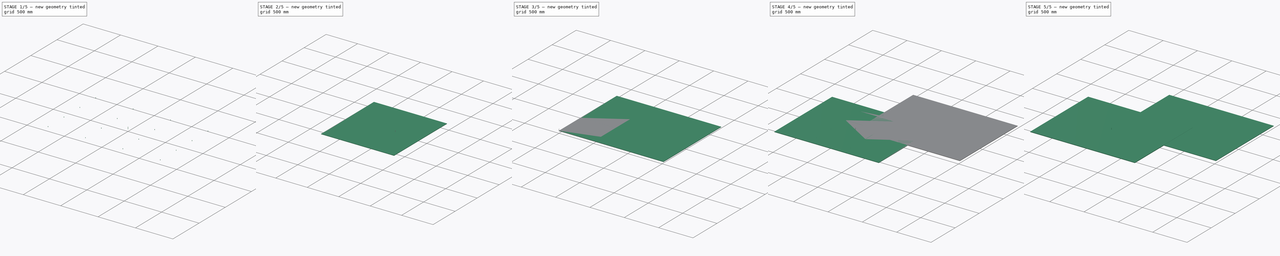
[diagram: build sequence overview — one tinted view per stage of 5, left to right]
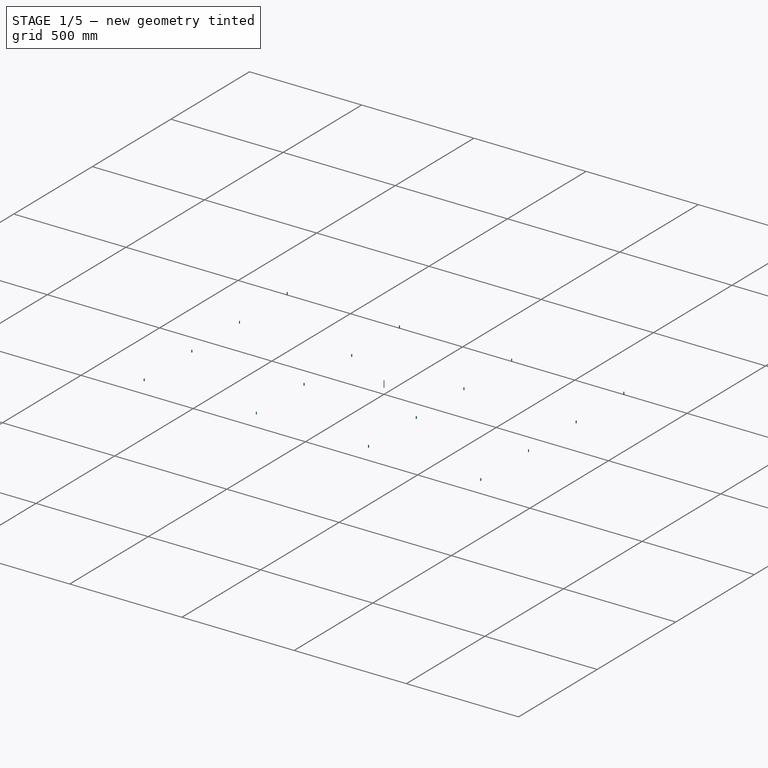
[diagram: stage 1 of 5 — iso view after this stage's code; geometry added in this stage tinted green]
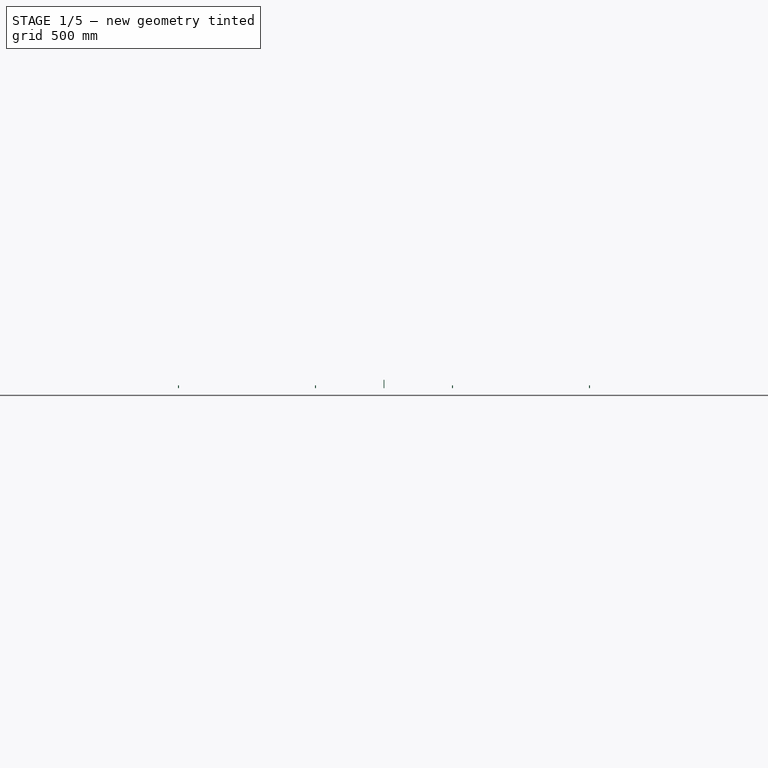
[diagram: stage 1 of 5 — front view after this stage's code; geometry added in this stage tinted green]
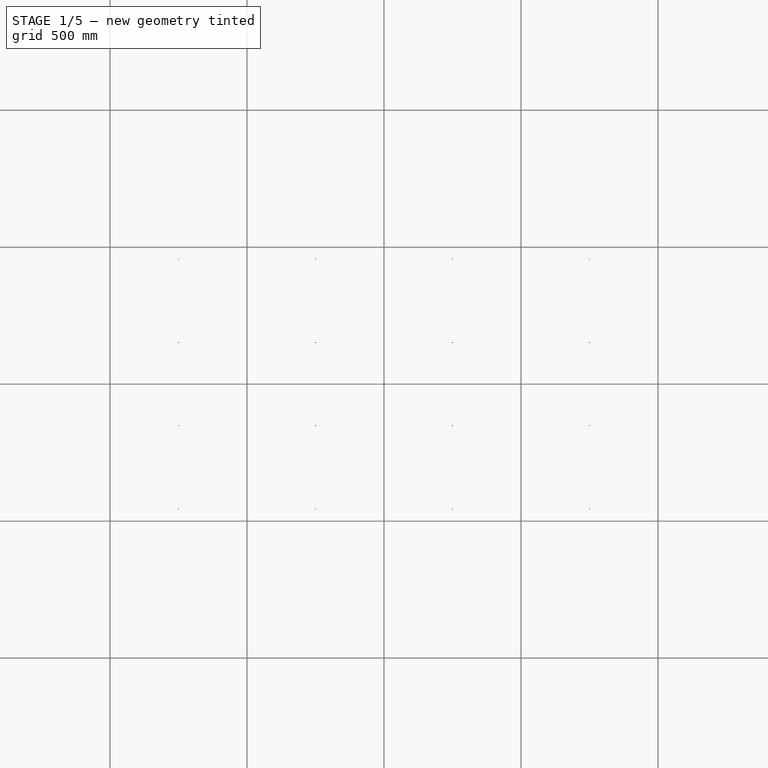
[diagram: stage 1 of 5 — top view after this stage's code; geometry added in this stage tinted green]
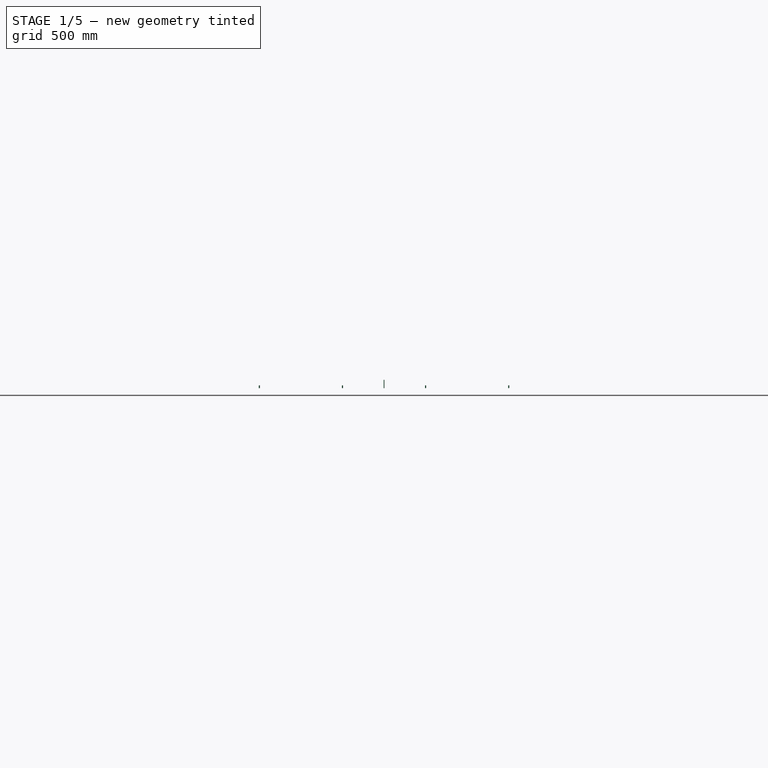
[diagram: stage 1 of 5 — right view after this stage's code; geometry added in this stage tinted green]
FCSTD DOCUMENT  (FreeCAD 0.22R36135 (Git))
Label: stillage_plywood
License: All rights reserved
LicenseURL: http://en.wikipedia.org/wiki/All_rights_reserved
objects: Part::FeaturePython×11, Path::FeaturePython×8, App::DocumentObjectGroup×6, Sketcher::SketchObject×3, PartDesign::Body×3, PartDesign::SubShapeBinder×2, PartDesign::Pad×2, Part::Compound×2, PartDesign::Boolean×2, App::FeaturePython×2, Part::Cylinder×1
note: 31 computed .brp shape members not serialized (recipe doc carries the construction recipe); baked Part::Feature solids carry a one-line shape summary decoded from their .brp

FEATURE [Part::Cylinder] Cylinder
  Angle = 360
  AttacherType = Attacher::AttachEngine3D
  FirstAngle = 0
  Height = 10
  Radius = 2
  SecondAngle = 0
FEATURE [Part::FeaturePython] LinearArray  # WARN: FeaturePython — macro-defined, semantics opaque (R4)
  Alignment = 0
  CellStart = A1
  Count = 4
  Dir = (1,0,0)
  DirIsDriven = true
  DistributionLaw = 0
  DrivenProperty = 1
  EndInclusive = true
  ExposePlacement = false
  GeneratorMode = 0
  MarkerShape = 1
  MarkerSize = 0
  NumElements = 4
  OrientMode = 1
  Point = (0,0,0)
  PointIsDriven = true
  Reverse = false
  SpanEnd = 1500
  SpanStart = 0
  Step = 500
  Type = lattice2LinearArray.LinearArray
  VSGVersion = 1
  Values = 0.0 | 500.0 | 1000.0 | 1500.0
  ValuesSource = 2
  isLattice = 1
FEATURE [Part::FeaturePython] LinearArray001  # WARN: FeaturePython — macro-defined, semantics opaque (R4)
  Alignment = 0
  CellStart = A1
  Count = 4
  Dir = (0,1,0)
  DirIsDriven = true
  DistributionLaw = 0
  DrivenProperty = 1
  EndInclusive = true
  ExposePlacement = false
  GeneratorMode = 0
  MarkerShape = 1
  MarkerSize = 0
  NumElements = 4
  OrientMode = 0
  Point = (0,0,0)
  PointIsDriven = true
  Reverse = false
  SpanEnd = 910
  SpanStart = 0
  Step = 303.333
  Type = lattice2LinearArray.LinearArray
  VSGVersion = 1
  Values = 0.0 | 303.3333333333333 | 606.6666666666666 | 910.0
  ValuesSource = 2
  isLattice = 1
FEATURE [Part::FeaturePython] Populate  label="Populate LinearArray001 with LinearArray"  # WARN: FeaturePython — macro-defined, semantics opaque (R4)
  Copying = 0
  ExposePlacement = false
  MarkerShape = 1
  MarkerSize = 0
  NumElements = 16
  Object = -> LinearArray
  OutputCompounding = 0
  Placement = pos=(-750,-455,0) rot=(0,0,1;0rad)
  PlacementsTo = -> LinearArray001
  Referencing = 0
  Type = lattice2PopulateCopies.LatticePopulateCopies
  isLattice = 1
  expr: .Placement.Base.x = -<<LinearArray>>.SpanEnd / 2
  expr: .Placement.Base.y = -<<LinearArray001>>.SpanEnd / 2
FEATURE [Sketcher::SketchObject] Sketch
  FullyConstrained = true
  sketch-geometry (5):
    g0: LineSegment StartX=-760 StartY=-600 StartZ=0 EndX=760 EndY=-600 EndZ=0
    g1: LineSegment StartX=760 StartY=-600 StartZ=0 EndX=760 EndY=600 EndZ=0
    g2: LineSegment StartX=760 StartY=600 StartZ=0 EndX=-760 EndY=600 EndZ=0
    g3: LineSegment StartX=-760 StartY=600 StartZ=0 EndX=-760 EndY=-600 EndZ=0
    g4: GeomPoint X=0 Y=0 Z=0
  constraints (12):
    c: Coincident(g0,g1)
    c: Coincident(g1,g2)
    c: Coincident(g2,g3)
    c: Coincident(g3,g0)
    c: Horizontal(g0)
    c: Horizontal(g2)
    c: Vertical(g1)
    c: Vertical(g3)
    c: Symmetric(g2,g0,g4)
    c: Coincident(g4,g-1)
    c: DistanceX(g2,g2) = 1520
    c: DistanceY(g1,g1) = 1200
FEATURE [Part::FeaturePython] Populate001  label="Populate Populate LinearArray001 with LinearArray with Cylinder"  # WARN: FeaturePython — macro-defined, semantics opaque (R4)
  Copying = 0
  ExposePlacement = false
  MarkerShape = 1
  MarkerSize = 0
  NumElements = 0
  Object = -> Cylinder
  OutputCompounding = 1
  PlacementsTo = -> Populate
  Referencing = 0
  Type = lattice2PopulateCopies.LatticePopulateCopies
  isLattice = 0
FEATURE [App::DocumentObjectGroup] Model001
  Group = -> [Clone001]
FEATURE [Part::FeaturePython] ToolBit001  label="3.175mm Endmill003"  # Path/CAM toolbit (typed FeaturePython)
  BitPropertyNames = Chipload | CuttingEdgeHeight | Diameter | Flutes | Length | Material | ShankDiameter | SpindleDirection
  BitShape = <path>
  Chipload = 0
  CuttingEdgeHeight = 30
  Diameter = 3.17
  Flutes = 0
  Length = 10
  Material = 0
  ShankDiameter = 3
  ShapeName = endmill
  SpindleDirection = 0
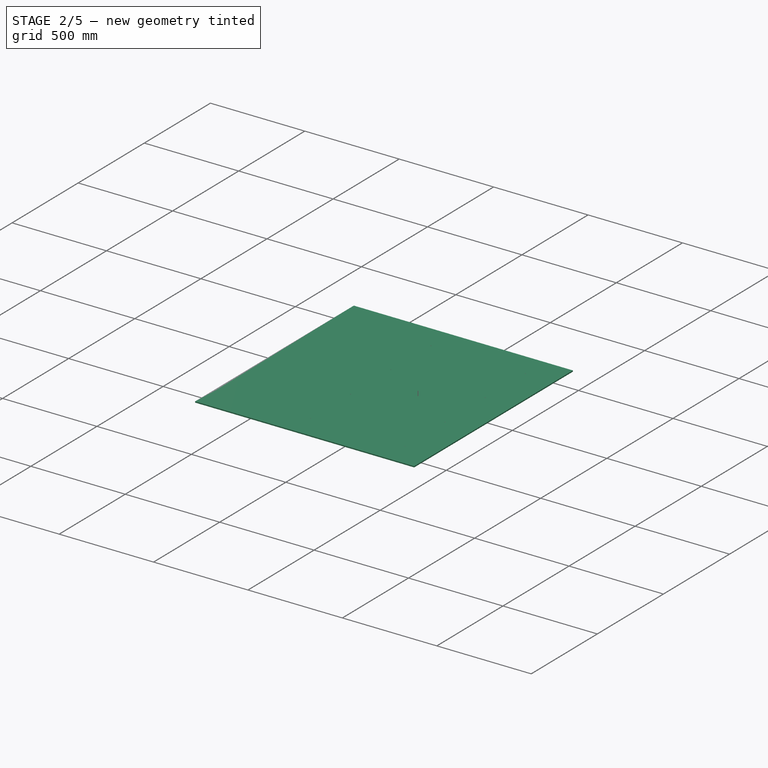
[diagram: stage 2 of 5 — iso view after this stage's code; geometry added in this stage tinted green]
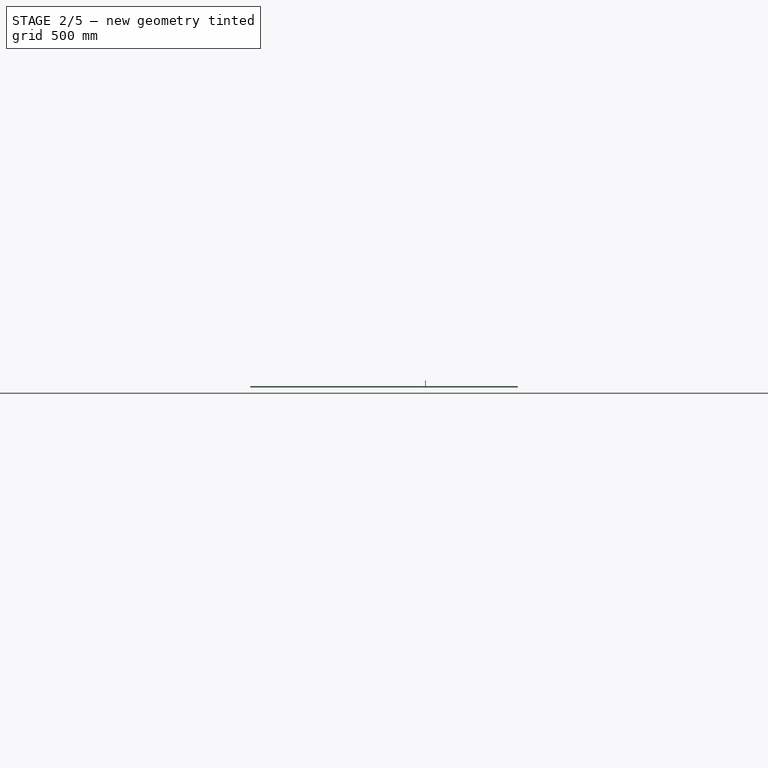
[diagram: stage 2 of 5 — front view after this stage's code; geometry added in this stage tinted green]
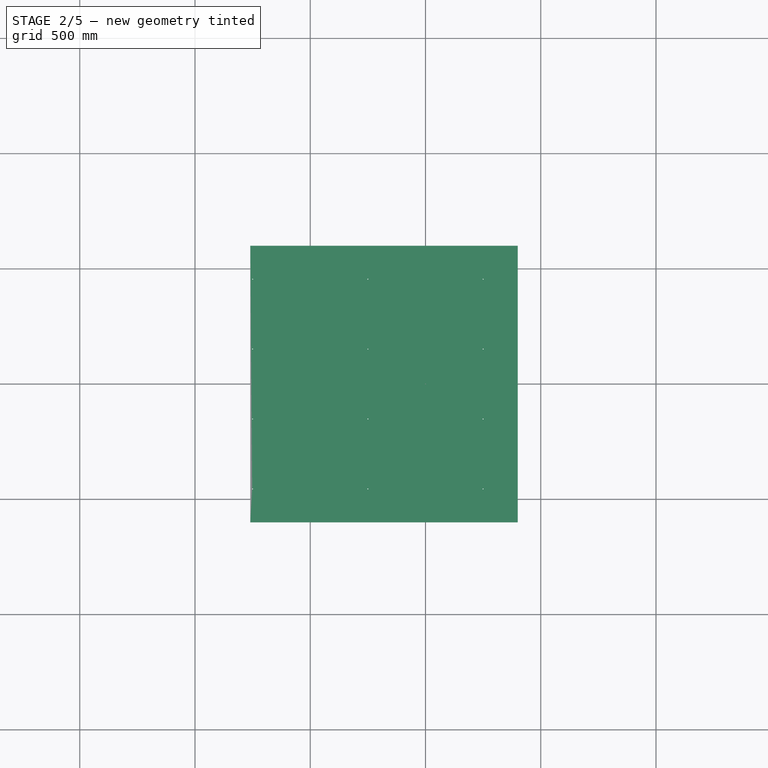
[diagram: stage 2 of 5 — top view after this stage's code; geometry added in this stage tinted green]
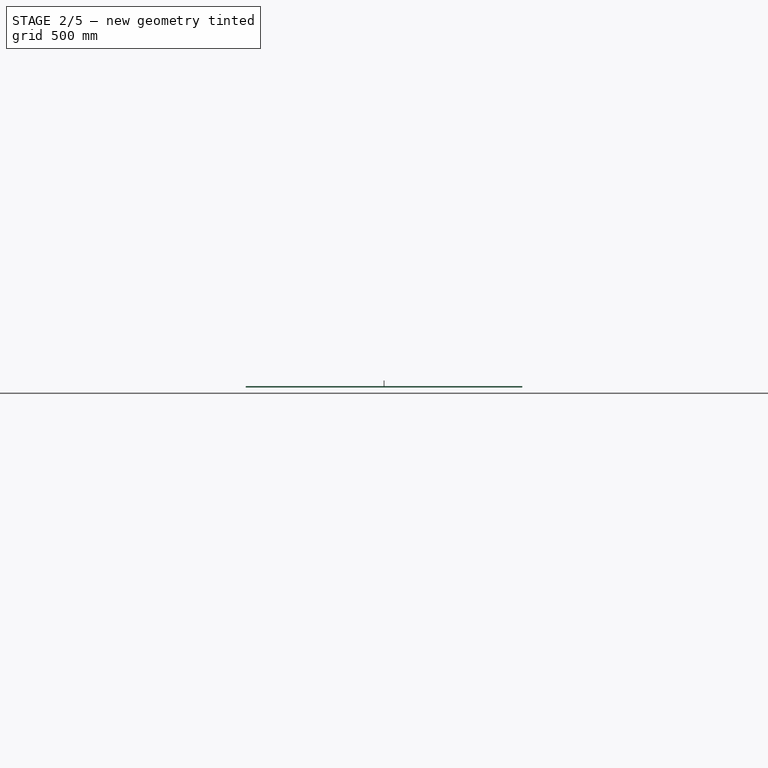
[diagram: stage 2 of 5 — right view after this stage's code; geometry added in this stage tinted green]
FEATURE [Sketcher::SketchObject] Sketch001
  ExternalGeometry = -> [Sketch]
  FullyConstrained = true
  sketch-geometry (4):
    g0: LineSegment StartX=-760 StartY=-600 StartZ=0 EndX=400 EndY=-600 EndZ=0
    g1: LineSegment StartX=400 StartY=-600 StartZ=0 EndX=400 EndY=600 EndZ=0
    g2: LineSegment StartX=400 StartY=600 StartZ=0 EndX=-760 EndY=600 EndZ=0
    g3: LineSegment StartX=-760 StartY=600 StartZ=0 EndX=-760 EndY=-600 EndZ=0
  constraints (10):
    c: Coincident(g0,g1)
    c: Coincident(g1,g2)
    c: Coincident(g2,g3)
    c: Coincident(g3,g0)
    c: Horizontal(g0)
    c: Horizontal(g2)
    c: Vertical(g1)
    c: Coincident(g0,g-3)
    c: Coincident(g2,g-3)
    c: DistanceX(g0,g0) = 1160
FEATURE [PartDesign::SubShapeBinder] Binder001
  BindCopyOnChange = 0
  BindMode = 0
  ClaimChildren = false
  Context = -> Body001 [Binder001.]
  Fuse = false
  MakeFace = true
  OffsetFill = false
  OffsetIntersection = false
  OffsetJoinType = 0
  OffsetOpenResult = false
  PartialLoad = false
  Relative = true
  Support = -> [Sketch001]
  _Version = 2
FEATURE [PartDesign::Pad] Pad001
  Direction = (0,0,1)
  Length = 6
  Length2 = 10
  Profile = -> Binder001
  Suppressed = false
  Type = 0
FEATURE [Part::Compound] Compound001
  Links = -> [Populate001]
FEATURE [PartDesign::Body] Body
  Group = -> [Binder,Pad,Boolean]
  Origin = -> Origin
  Tip = -> Boolean
FEATURE [PartDesign::Boolean] Boolean001
  BaseFeature = -> Pad001
  Group = -> [Compound001]
  Suppressed = false
  Type = 1
  UsePlacement = true
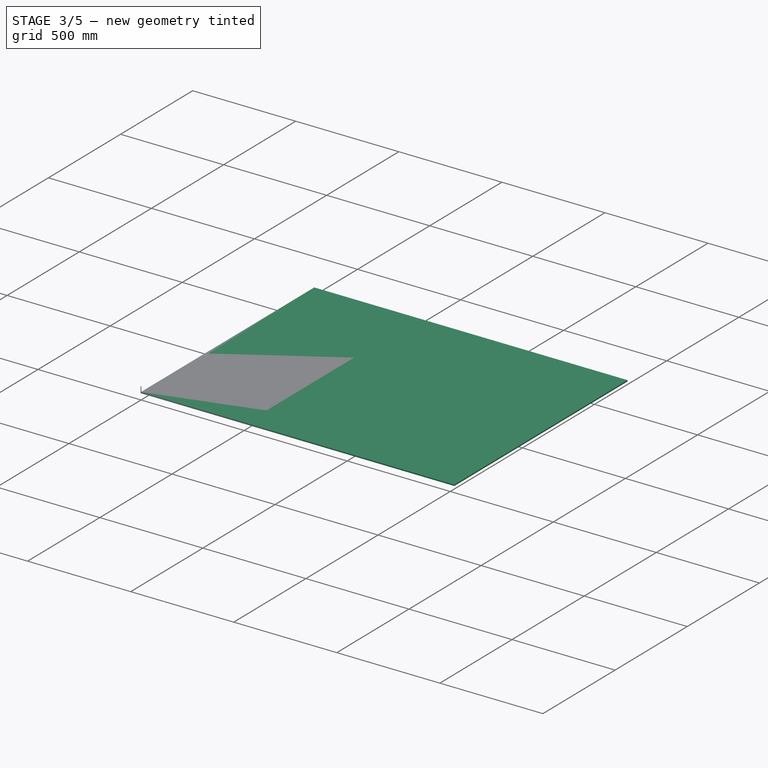
[diagram: stage 3 of 5 — iso view after this stage's code; geometry added in this stage tinted green]
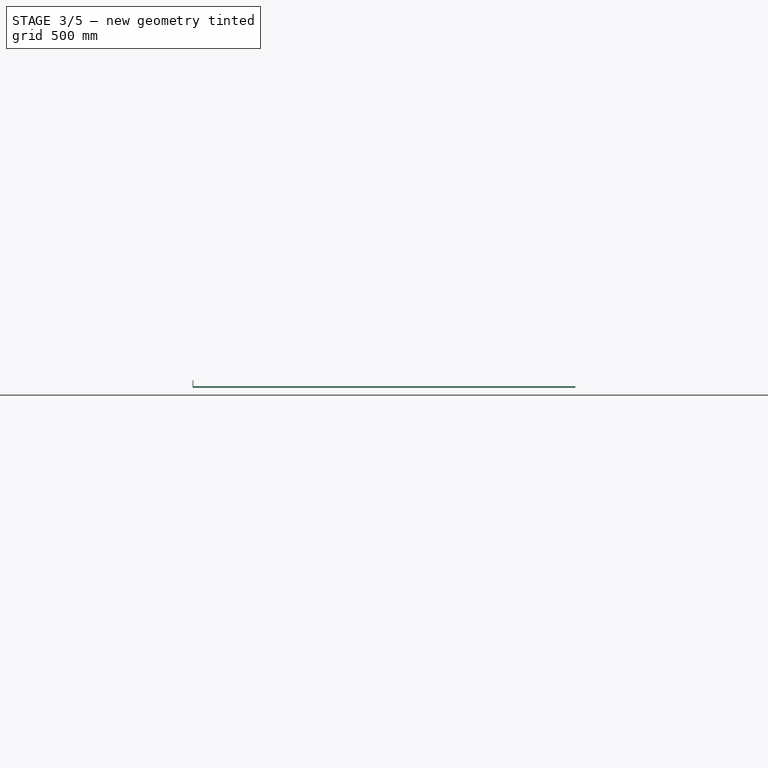
[diagram: stage 3 of 5 — front view after this stage's code; geometry added in this stage tinted green]
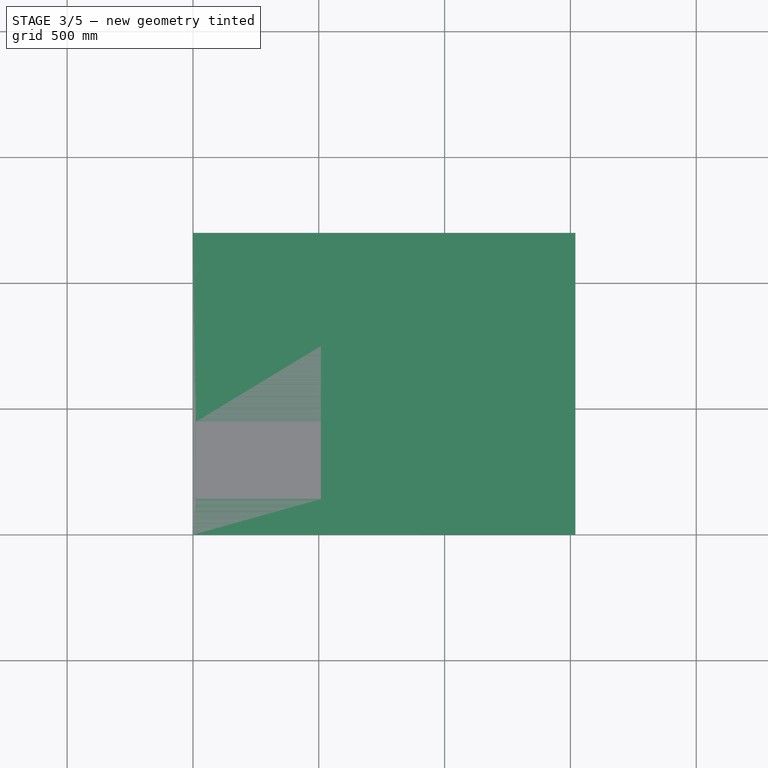
[diagram: stage 3 of 5 — top view after this stage's code; geometry added in this stage tinted green]
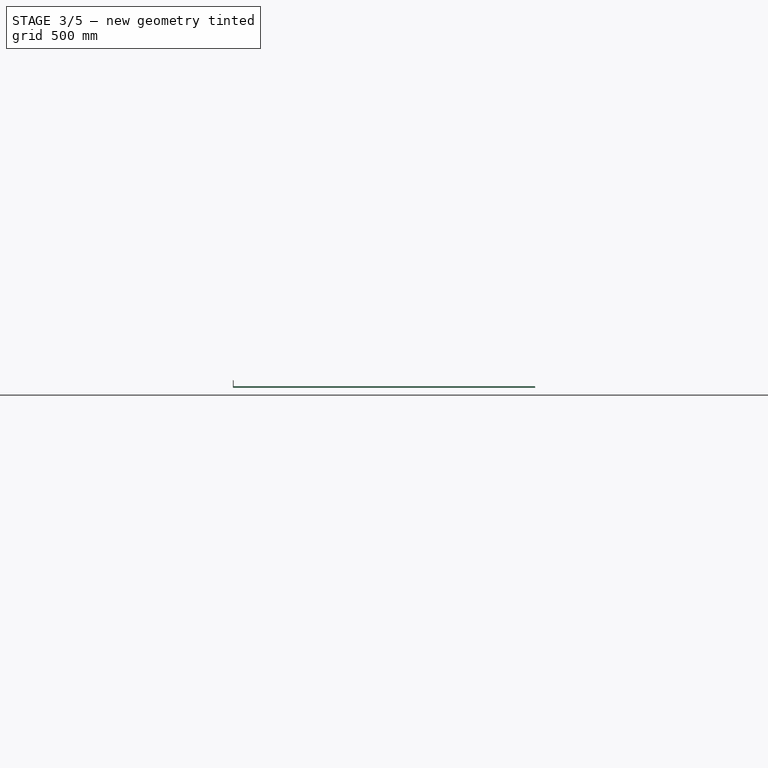
[diagram: stage 3 of 5 — right view after this stage's code; geometry added in this stage tinted green]
FEATURE [App::DocumentObjectGroup] Model
  Group = -> [Clone]
FEATURE [Part::FeaturePython] ToolBit  label="3.175mm Endmill"  # Path/CAM toolbit (typed FeaturePython)
  BitPropertyNames = Chipload | CuttingEdgeHeight | Diameter | Flutes | Length | Material | ShankDiameter | SpindleDirection
  BitShape = <path>
  Chipload = 0
  CuttingEdgeHeight = 30
  Diameter = 3.17
  Flutes = 0
  Length = 10
  Material = 0
  ShankDiameter = 3
  ShapeName = endmill
  SpindleDirection = 0
FEATURE [App::FeaturePython] SetupSheet001  # Path/CAM operation (typed FeaturePython)
  ClearanceHeightExpression = OpStockZMax+SetupSheet001.ClearanceHeightOffset
  ClearanceHeightOffset = 5
  CoolantMode = 0
  CoolantModes = None | Flood | Mist
  FinalDepthExpression = OpFinalDepth
  HorizRapid = 0
  ProfileDirection = 1
  ProfileprocessCircles = true
  ProfileprocessHoles = true
  ProfileprocessPerimeter = true
  SafeHeightExpression = OpStockZMax+SetupSheet001.SafeHeightOffset
  SafeHeightOffset = 3
  StartDepthExpression = OpStartDepth
  StepDownExpression = OpToolDiameter
  VertRapid = 0
FEATURE [Part::FeaturePython] Clone001  label="Model-Body001"  # Draft clone (typed FeaturePython)
  AttacherType = Attacher::AttachEngine3D
  Fuse = false
  Objects = -> [Body001]
  PathResource = Model
  Placement = pos=(760,600,0) rot=(0,0,1;0rad)
  Scale = (1,1,1)
FEATURE [Path::FeaturePython] Profile  # Path/CAM operation (typed FeaturePython)
  Active = true
  AreaParams:
    Tolerance = 1e-07
    FitArcs = True
    Simplify = False
    CleanDistance = 0.0
    Accuracy = 0.01
    Unit = 1.0
    MinArcPoints = 4
    MaxArcPoints = 100
    ClipperScale = 10000000.0
    Fill = 0
    Coplanar = 0
    Reorient = True
    Outline = False
    Explode = False
    OpenMode = 0
    Deflection = 0.01
    SubjectFill = 0
    ClipFill = 0
    Offset = -1.585
    ExtraPass = 0
    Stepover = 0.0
    LastStepover = 0.0
    JoinType = 0
    EndType = 0
    MiterLimit = 2.0
    RoundPrecision = 0.0
    PocketMode = 0
    ToolRadius = 1.0
    PocketExtraOffset = 0.0
    PocketStepover = 0.0
    PocketLastStepover = 0.0
    FromCenter = False
    Angle = 45.0
    AngleShift = 0.0
    Shift = 0.0
    Thicken = False
    SectionCount = -1
    Stepdown = 1.0
    SectionOffset = 0.0
    SectionTolerance = 1e-06
    SectionMode = 2
    Project = False
  Base = -> [Clone]
  ClearanceHeight = 100
  CoolantMode = 0
  CycleTime = 00:05:01
  Direction = 1
  FinalDepth = 0
  HandleMultipleFeatures = 0
  JoinType = 0
  MiterLimit = 0.1
  OffsetExtra = 0
  OpFinalDepth = 0
  OpStartDepth = 7
  OpStockZMax = 7
  OpStockZMin = 0
  OpToolDiameter = 3.17
  PathParams = {'orientation': 1, 'feedrate': 51.666666666666664, 'feedrate_v': 16.666666666666668, 'verbose': True, 'resume_height': 10.0, 'retraction': 100.0, 'return_end': True, 'preamble': False, 'start': Vector (1509.9999992664689, 448.74066408653346, 100.0)}
  SafeHeight = 10
  Side = 0
  SplitArcs = false
  StartDepth = 7
  StartPoint = (0,0,0)
  StepDown = 3.17
  ToolController = -> __175mm_Endmill
  UseComp = true
  UseStartPoint = false
  processCircles = true
  processHoles = true
  processPerimeter = false
  expr: FinalDepth = OpFinalDepth
  expr: SafeHeight = OpStockZMax + SetupSheet.SafeHeightOffset
  expr: StartDepth = OpStartDepth
  expr: StepDown = OpToolDiameter
FEATURE [Path::FeaturePython] Deburr  # Path/CAM operation (typed FeaturePython)
  Active = true
  Base = -> [Clone]
  ClearanceHeight = 100
  CoolantMode = 0
  CycleTime = 00:01:10
  Direction = 0
  EntryPoint = 0
  ExtraDepth = 0
  Join = 0
  OpStockZMax = 7
  OpStockZMin = 0
  OpToolDiameter = 3.17
  SafeHeight = 10
  Side = 0
  StartDepth = 7
  StepDown = 0
  ToolController = -> __175mm_Endmill
  Width = 0
  expr: ClearanceHeight = 100
  expr: SafeHeight = OpStockZMax + SetupSheet.SafeHeightOffset
  expr: StepDown = 0 mm
FEATURE [App::DocumentObjectGroup] Operations
  Group = -> [Profile,Deburr]
FEATURE [Path::FeaturePython] Job  label="stillage_b"  # Path/CAM operation (typed FeaturePython)
  CycleTime = 00:06:11
  Fixtures = G54
  GeometryTolerance = 0.01
  JobType = 0
  LastPostProcessDate = 2024-02-29 18:02:10.657767
  LastPostProcessOutput = <userpath>/2CAF-B51C/stillage_b.tap
  Model = -> Model
  Operations = -> Operations
  OrderOutputBy = 2
  PostProcessor = 3
  PostProcessorOutputFile = %j.tap
  SetupSheet = -> SetupSheet
  SplitOutput = false
  Stock = -> Stock
  Tools = -> Tools
FEATURE [Sketcher::SketchObject] Sketch002
  FullyConstrained = false
  sketch-geometry (4):
    g0: LineSegment StartX=-71.07 StartY=-72.1724 StartZ=0 EndX=89.2476 EndY=-72.1724 EndZ=0
    g1: LineSegment StartX=89.2476 StartY=-72.1724 StartZ=0 EndX=89.2476 EndY=1474.11 EndZ=0
    g2: LineSegment StartX=89.2476 StartY=1474.11 StartZ=0 EndX=-71.07 EndY=1474.11 EndZ=0
    g3: LineSegment StartX=-71.07 StartY=1474.11 StartZ=0 EndX=-71.07 EndY=-72.1724 EndZ=0
  constraints (8):
    c: Coincident(g0,g1)
    c: Coincident(g1,g2)
    c: Coincident(g2,g3)
    c: Coincident(g3,g0)
    c: Horizontal(g0)
    c: Horizontal(g2)
    c: Vertical(g1)
    c: Vertical(g3)
FEATURE [Part::FeaturePython] Stock003  # WARN: FeaturePython — macro-defined, semantics opaque (R4)
  Height = 6
  Length = 1520
  StockType = CreateBox
  Width = 1200
FEATURE [Path::FeaturePython] Profile001  # Path/CAM operation (typed FeaturePython)
  Active = true
  AreaParams:
    Tolerance = 1e-07
    FitArcs = True
    Simplify = False
    CleanDistance = 0.0
    Accuracy = 0.01
    Unit = 1.0
    MinArcPoints = 4
    MaxArcPoints = 100
    ClipperScale = 10000000.0
    Fill = 0
    Coplanar = 0
    Reorient = True
    Outline = False
    Explode = False
    OpenMode = 0
    Deflection = 0.01
    SubjectFill = 0
    ClipFill = 0
    Offset = -1.585
    ExtraPass = 0
    Stepover = 0.0
    LastStepover = 0.0
    JoinType = 0
    EndType = 0
    MiterLimit = 2.0
    RoundPrecision = 0.0
    PocketMode = 0
    ToolRadius = 1.0
    PocketExtraOffset = 0.0
    PocketStepover = 0.0
    PocketLastStepover = 0.0
    FromCenter = False
    Angle = 45.0
    AngleShift = 0.0
    Shift = 0.0
    Thicken = False
    SectionCount = -1
    Stepdown = 1.0
    SectionOffset = 0.0
    SectionTolerance = 1e-06
    SectionMode = 2
    Project = False
  Base = -> [Clone001]
  ClearanceHeight = 100
  CoolantMode = 0
  CycleTime = 00:03:45
  Direction = 1
  FinalDepth = 0
  HandleMultipleFeatures = 0
  JoinType = 0
  MiterLimit = 0.1
  OffsetExtra = 0
  OpFinalDepth = 0
  OpStartDepth = 7
  OpStockZMax = 7
  OpStockZMin = 0
  OpToolDiameter = 3.17
  PathParams = {'orientation': 1, 'feedrate': 51.666666666666664, 'feedrate_v': 16.666666666666668, 'verbose': True, 'resume_height': 10.0, 'retraction': 100.0, 'return_end': True, 'preamble': False, 'start': Vector (1009.999999266469, 751.2593359134665, 100.0)}
  SafeHeight = 10
  Side = 0
  SplitArcs = false
  StartDepth = 7
  StartPoint = (0,0,0)
  StepDown = 3.17
  ToolController = -> __175mm_Endmill001
  UseComp = true
  UseStartPoint = false
  processCircles = true
  processHoles = true
  processPerimeter = false
  expr: FinalDepth = OpFinalDepth
  expr: SafeHeight = OpStockZMax + SetupSheet001.SafeHeightOffset
  expr: StartDepth = OpStartDepth
  expr: StepDown = OpToolDiameter
FEATURE [Path::FeaturePython] Profile002  # Path/CAM operation (typed FeaturePython)
  Active = true
  AreaParams:
    Tolerance = 1e-07
    FitArcs = True
    Simplify = False
    CleanDistance = 0.0
    Accuracy = 0.01
    Unit = 1.0
    MinArcPoints = 4
    MaxArcPoints = 100
    ClipperScale = 10000000.0
    Fill = 0
    Coplanar = 0
    Reorient = True
    Outline = False
    Explode = False
    OpenMode = 0
    Deflection = 0.01
    SubjectFill = 0
    ClipFill = 0
    Offset = 1.585
    ExtraPass = 0
    Stepover = 0.0
    LastStepover = 0.0
    JoinType = 0
    EndType = 0
    MiterLimit = 2.0
    RoundPrecision = 0.0
    PocketMode = 0
    ToolRadius = 1.0
    PocketExtraOffset = 0.0
    PocketStepover = 0.0
    PocketLastStepover = 0.0
    FromCenter = False
    Angle = 45.0
    AngleShift = 0.0
    Shift = 0.0
    Thicken = False
    SectionCount = -1
    Stepdown = 1.0
    SectionOffset = 0.0
    SectionTolerance = 1e-06
    SectionMode = 2
    Project = False
  Base = -> [Clone001]
  ClearanceHeight = 12
  CoolantMode = 0
  CycleTime = 00:02:06
  Direction = 1
  FinalDepth = 0
  HandleMultipleFeatures = 0
  JoinType = 0
  MiterLimit = 0.1
  OffsetExtra = 0
  OpFinalDepth = 0
  OpStartDepth = 7
  OpStockZMax = 7
  OpStockZMin = 0
  OpToolDiameter = 3.17
  PathParams = {'orientation': 0, 'feedrate': 51.666666666666664, 'feedrate_v': 16.666666666666668, 'verbose': True, 'resume_height': 10.0, 'retraction': 12.0, 'return_end': True, 'preamble': False}
  SafeHeight = 10
  Side = 0
  SplitArcs = false
  StartDepth = 7
  StartPoint = (0,0,0)
  StepDown = 10
  ToolController = -> __175mm_Endmill001
  UseComp = true
  UseStartPoint = false
  processCircles = false
  processHoles = false
  processPerimeter = true
  expr: Base = <<Profile001>>.Base
  expr: ClearanceHeight = OpStockZMax + SetupSheet001.ClearanceHeightOffset
  expr: FinalDepth = OpFinalDepth
  expr: SafeHeight = OpStockZMax + SetupSheet001.SafeHeightOffset
  expr: StartDepth = OpStartDepth
FEATURE [App::DocumentObjectGroup] Operations001
  Group = -> [Profile001,Profile002]
FEATURE [Path::FeaturePython] Job001  label="stillage_s"  # Path/CAM operation (typed FeaturePython)
  CycleTime = 00:05:51
  Fixtures = G54
  GeometryTolerance = 0.01
  JobType = 0
  LastPostProcessDate = 2024-02-29 18:02:44.545710
  LastPostProcessOutput = <userpath>/2CAF-B51C/stillage_s-0.tap \n<userpath>/2CAF-B51C/stillage_s-1.tap
  Model = -> Model001
  Operations = -> Operations001
  OrderOutputBy = 2
  PostProcessor = 3
  PostProcessorOutputFile = %j.tap
  SetupSheet = -> SetupSheet001
  SplitOutput = true
  Stock = -> Stock001
  Tools = -> Tools001
note: 2 file-system paths scrubbed to <path> (originals preserved in the JSON sidecar)
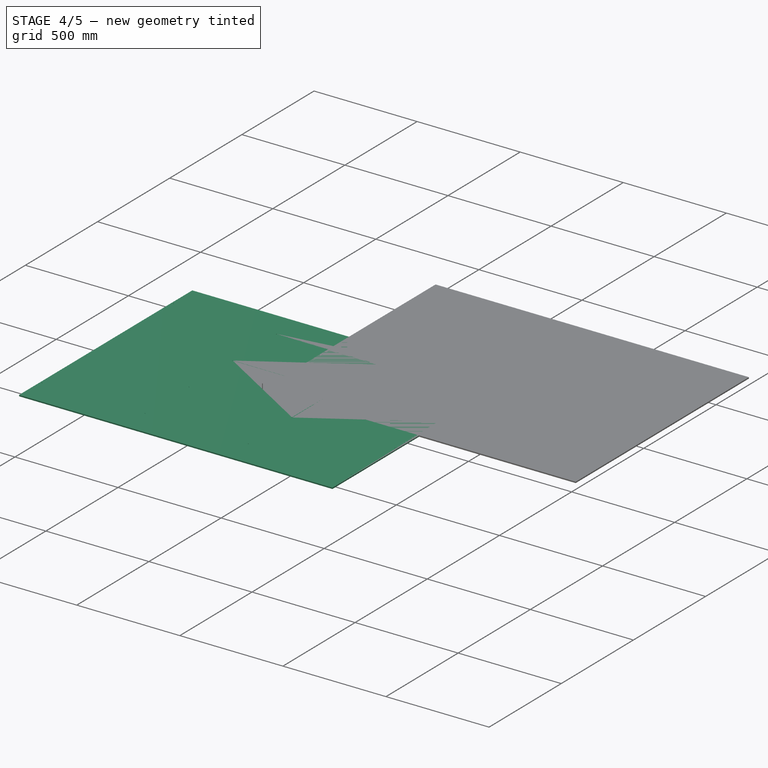
[diagram: stage 4 of 5 — iso view after this stage's code; geometry added in this stage tinted green]
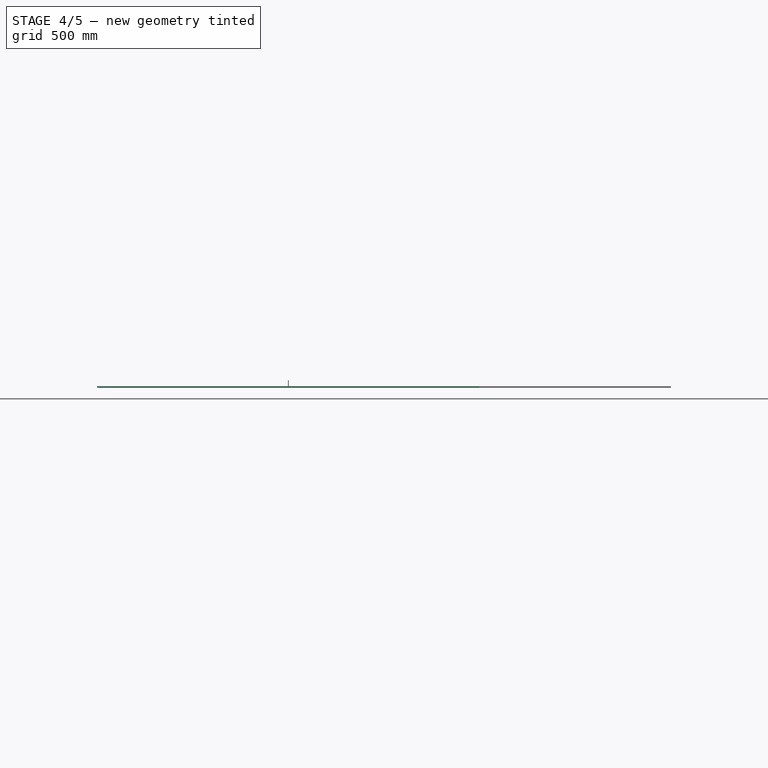
[diagram: stage 4 of 5 — front view after this stage's code; geometry added in this stage tinted green]
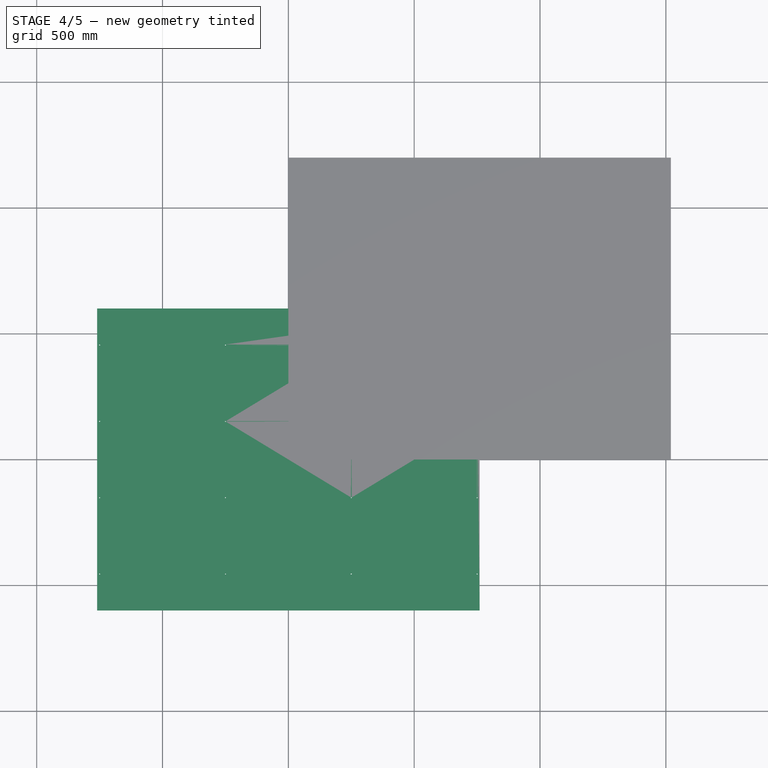
[diagram: stage 4 of 5 — top view after this stage's code; geometry added in this stage tinted green]
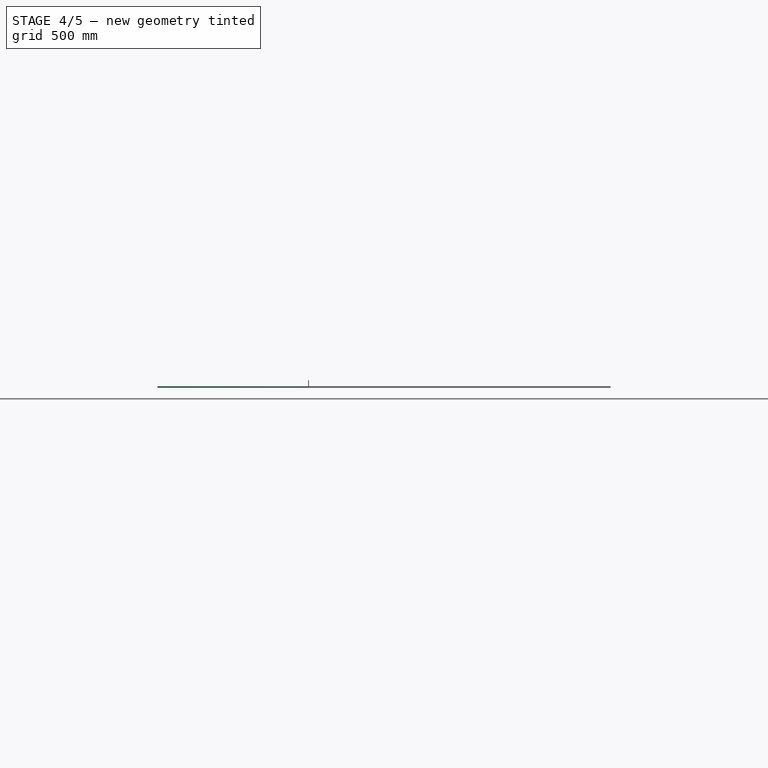
[diagram: stage 4 of 5 — right view after this stage's code; geometry added in this stage tinted green]
FEATURE [Part::Compound] Compound
  Links = -> [Populate001]
FEATURE [PartDesign::SubShapeBinder] Binder
  BindCopyOnChange = 0
  BindMode = 0
  ClaimChildren = false
  Context = -> Body [Binder.]
  Fuse = false
  MakeFace = true
  OffsetFill = false
  OffsetIntersection = false
  OffsetJoinType = 0
  OffsetOpenResult = false
  PartialLoad = false
  Relative = true
  Support = -> [Sketch]
  _Version = 2
FEATURE [PartDesign::Body] Body002
  Origin = -> Origin002
FEATURE [PartDesign::Pad] Pad
  Direction = (0,0,1)
  Length = 6
  Length2 = 10
  Profile = -> Binder
  Suppressed = false
  Type = 0
FEATURE [PartDesign::Boolean] Boolean
  BaseFeature = -> Pad
  Group = -> [Compound]
  Suppressed = false
  Type = 1
  UsePlacement = true
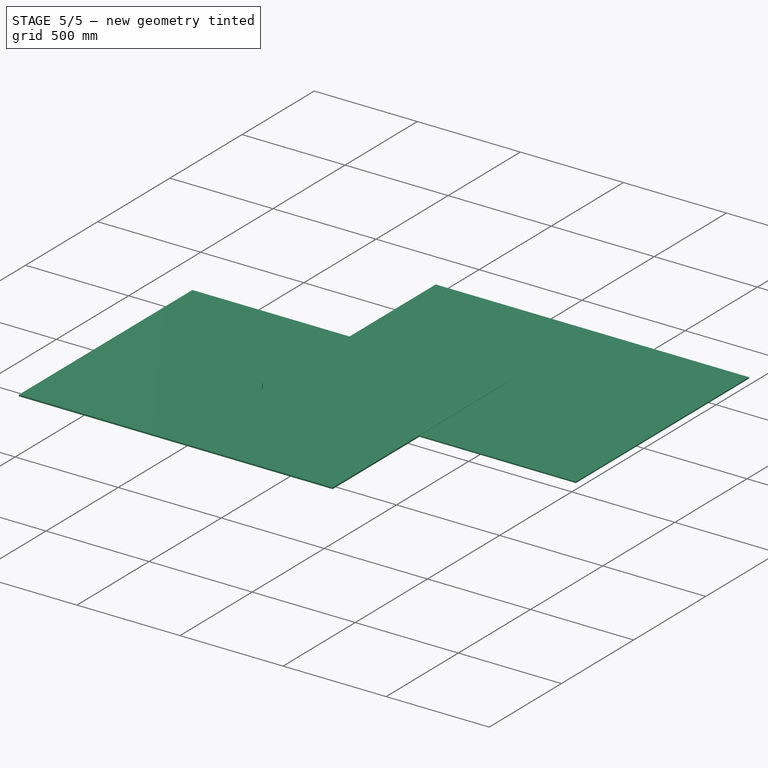
[diagram: stage 5 of 5 — iso view after this stage's code; geometry added in this stage tinted green]
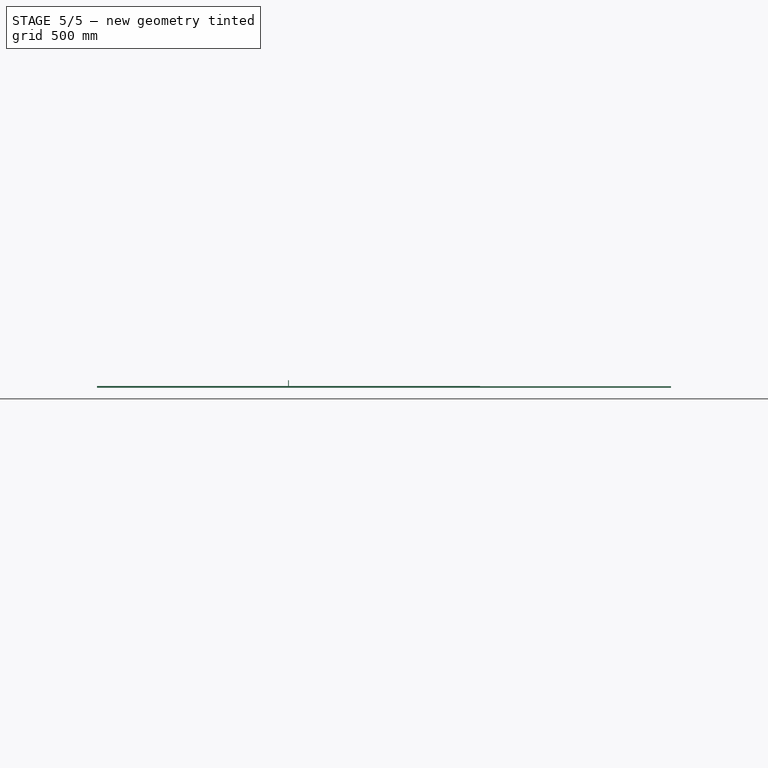
[diagram: stage 5 of 5 — front view after this stage's code; geometry added in this stage tinted green]
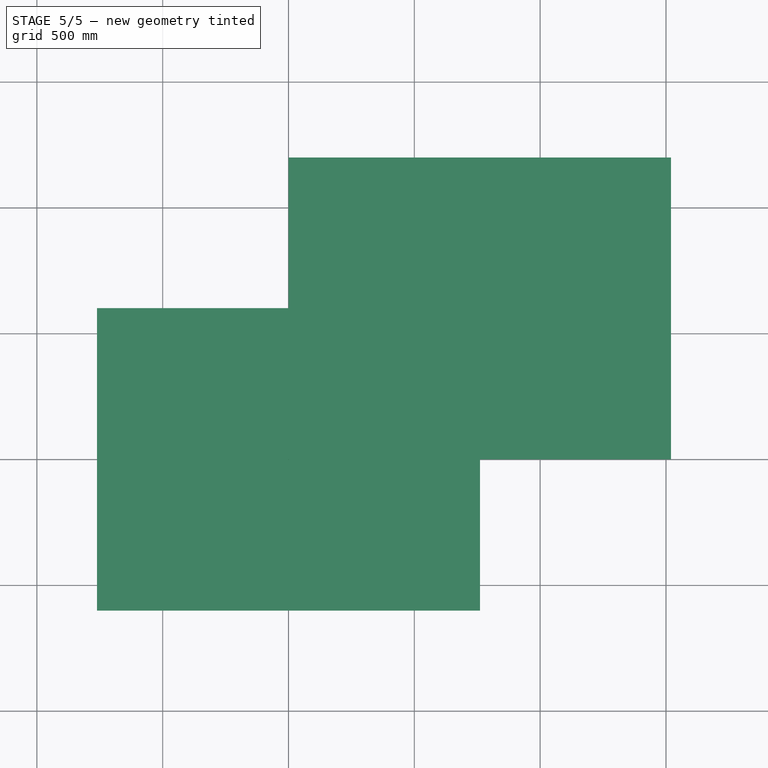
[diagram: stage 5 of 5 — top view after this stage's code; geometry added in this stage tinted green]
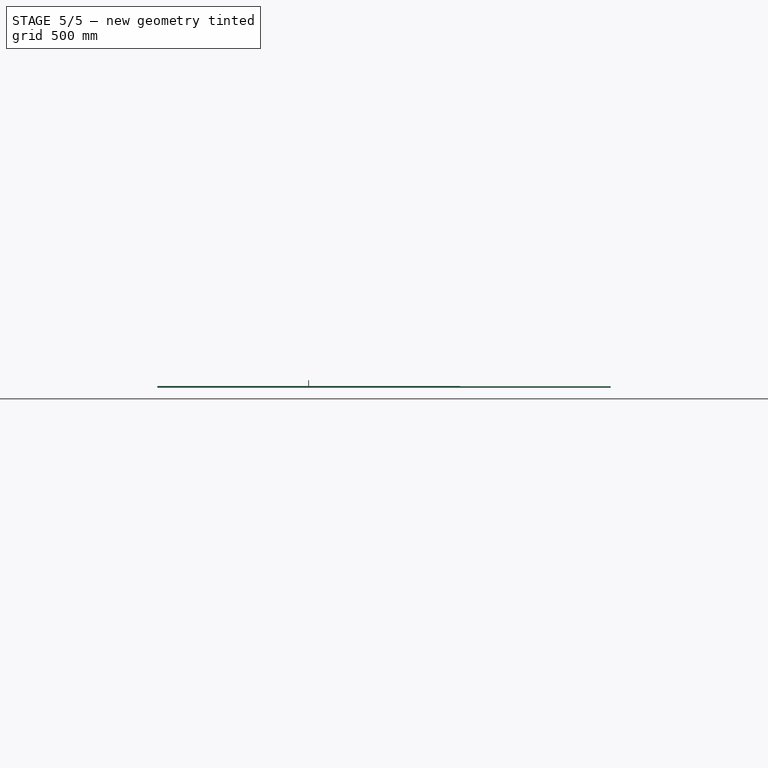
[diagram: stage 5 of 5 — right view after this stage's code; geometry added in this stage tinted green]
FEATURE [PartDesign::Body] Body001
  Group = -> [Binder001,Pad001,Boolean001]
  Origin = -> Origin001
  Tip = -> Boolean001
FEATURE [App::FeaturePython] SetupSheet  # Path/CAM operation (typed FeaturePython)
  ClearanceHeightExpression = OpStockZMax+SetupSheet.ClearanceHeightOffset
  ClearanceHeightOffset = 15
  CoolantMode = 0
  CoolantModes = None | Flood | Mist
  FinalDepthExpression = OpFinalDepth
  HorizRapid = 0
  ProfileDirection = 1
  ProfileprocessCircles = true
  ProfileprocessHoles = true
  ProfileprocessPerimeter = true
  SafeHeightExpression = OpStockZMax+SetupSheet.SafeHeightOffset
  SafeHeightOffset = 3
  StartDepthExpression = OpStartDepth
  StepDownExpression = OpToolDiameter
  VertRapid = 0
FEATURE [Part::FeaturePython] Clone  label="Model-Body"  # Draft clone (typed FeaturePython)
  AttacherType = Attacher::AttachEngine3D
  Fuse = false
  Objects = -> [Body]
  PathResource = Model
  Placement = pos=(760,600,0) rot=(0,0,1;0rad)
  Scale = (1,1,1)
FEATURE [Path::FeaturePython] __175mm_Endmill  label="3.175mm Endmill001"  # Path/CAM operation (typed FeaturePython)
  HorizFeed = 51.6667
  HorizRapid = 0
  SpindleDir = 0
  SpindleSpeed = 18000
  Tool = -> ToolBit
  ToolNumber = 1
  VertFeed = 16.6667
  VertRapid = 0
  expr: HorizRapid = SetupSheet.HorizRapid
  expr: VertRapid = SetupSheet.VertRapid
FEATURE [App::DocumentObjectGroup] Tools
  Group = -> [__175mm_Endmill]
FEATURE [Part::FeaturePython] Stock  # WARN: FeaturePython — macro-defined, semantics opaque (R4)
  Base = -> Model
  ExtXneg = 1
  ExtXpos = 1
  ExtYneg = 1
  ExtYpos = 1
  ExtZneg = 0
  ExtZpos = 1
  Placement = pos=(-760,-600,0) rot=(0,0,1;0rad)
  StockType = FromBase
FEATURE [Path::FeaturePython] __175mm_Endmill001  label="3.175mm Endmill002"  # Path/CAM operation (typed FeaturePython)
  HorizFeed = 51.6667
  HorizRapid = 0
  SpindleDir = 0
  SpindleSpeed = 18000
  Tool = -> ToolBit001
  ToolNumber = 1
  VertFeed = 16.6667
  VertRapid = 0
  expr: HorizRapid = SetupSheet001.HorizRapid
  expr: VertRapid = SetupSheet001.VertRapid
FEATURE [App::DocumentObjectGroup] Tools001
  Group = -> [__175mm_Endmill001]
FEATURE [Part::FeaturePython] Stock001  # WARN: FeaturePython — macro-defined, semantics opaque (R4)
  Base = -> Model001
  ExtXneg = 1
  ExtXpos = 1
  ExtYneg = 1
  ExtYpos = 1
  ExtZneg = 0
  ExtZpos = 1
  Placement = pos=(-760,-600,0) rot=(0,0,1;0rad)
  StockType = FromBase
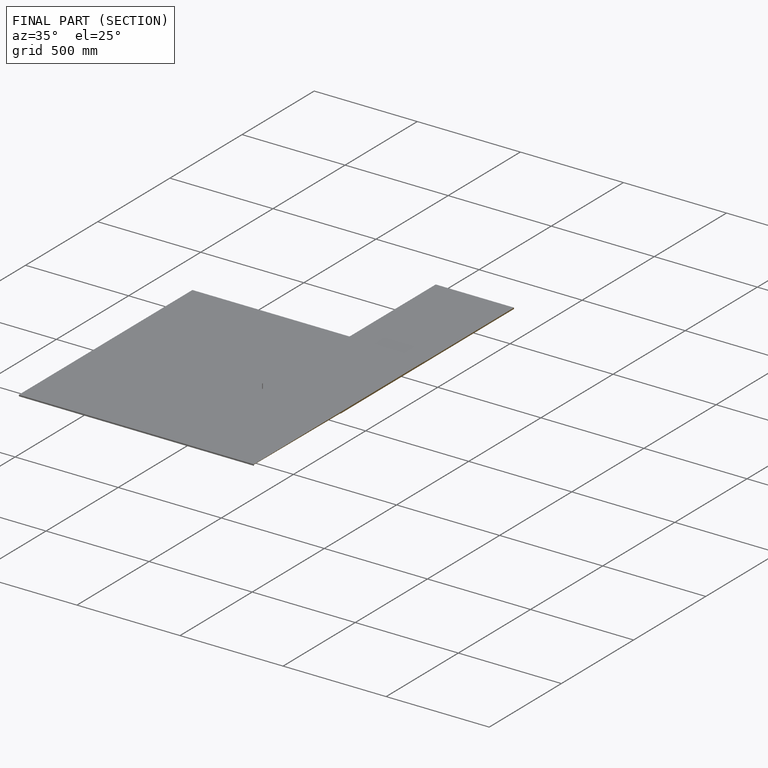
[diagram: finished part — half-section view (interior)]
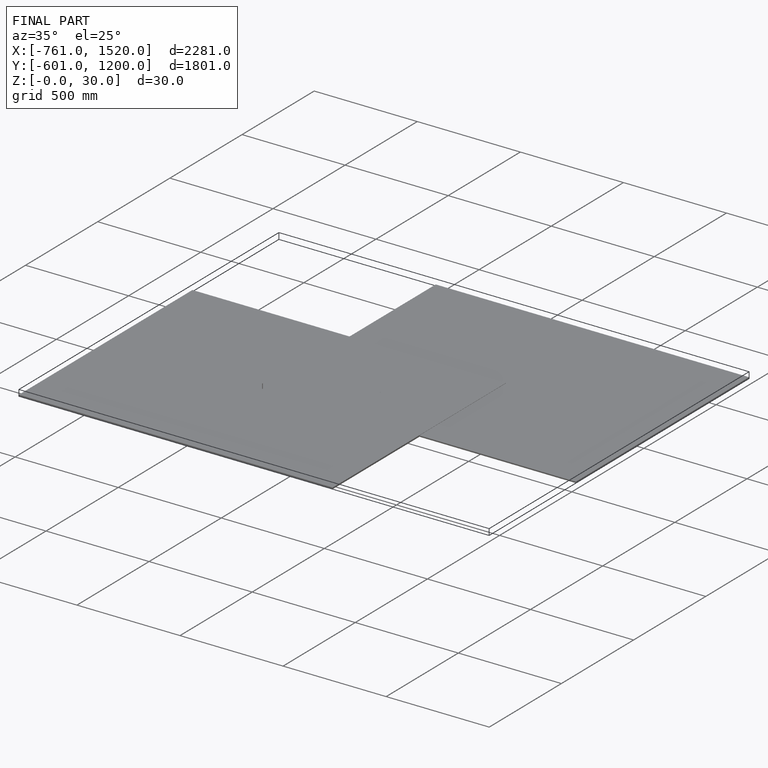
[diagram: finished part — iso view with bounding-box wireframe]
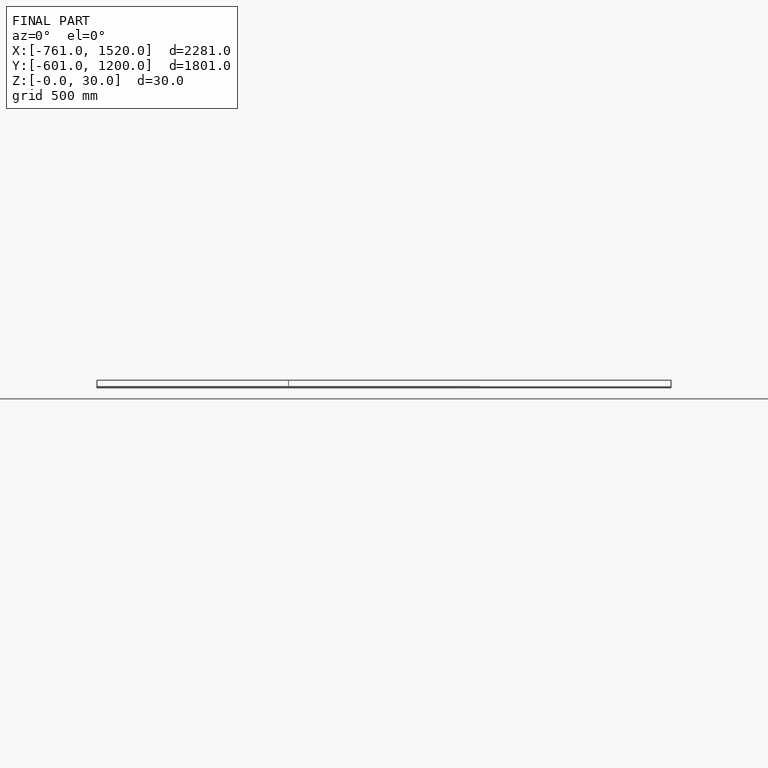
[diagram: finished part — front view with bounding-box wireframe]
